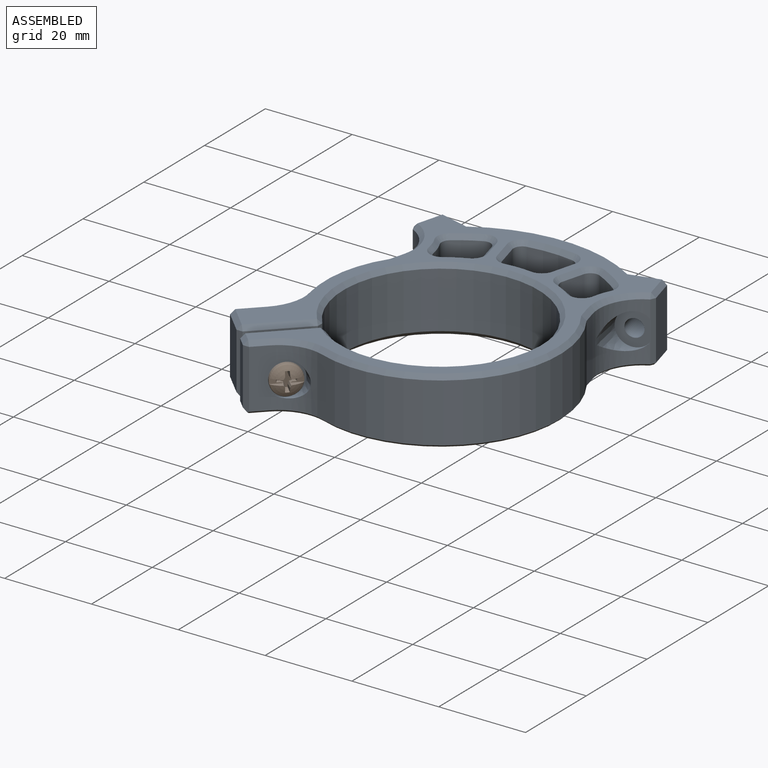
[diagram: assembled view]
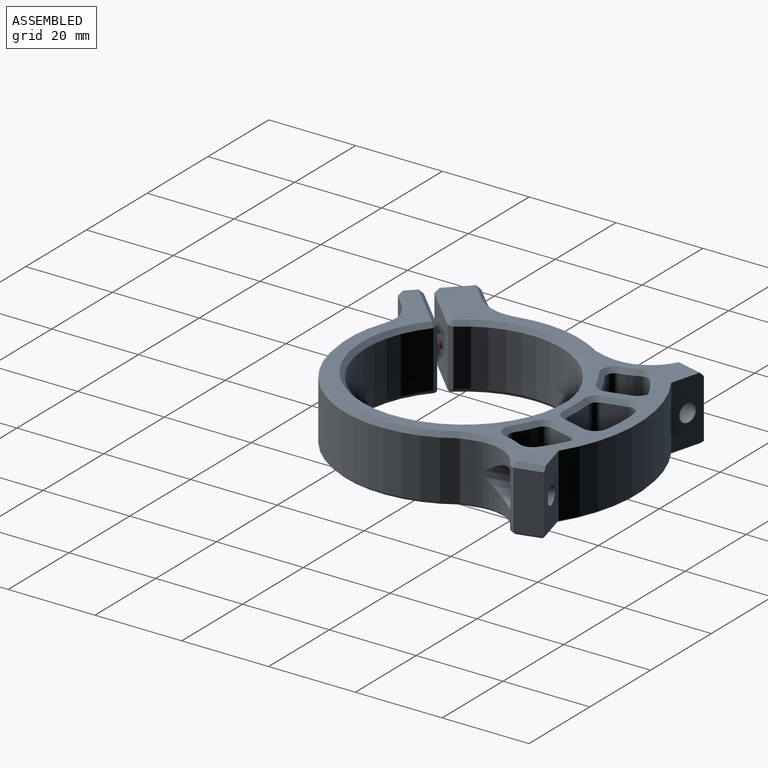
[diagram: assembled view, second angle]
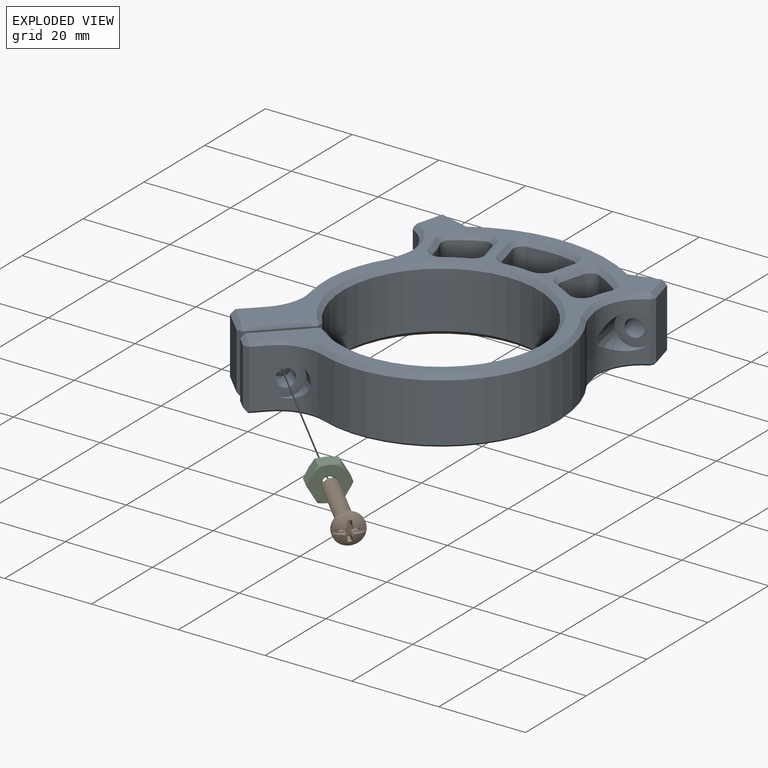
[diagram: exploded view]
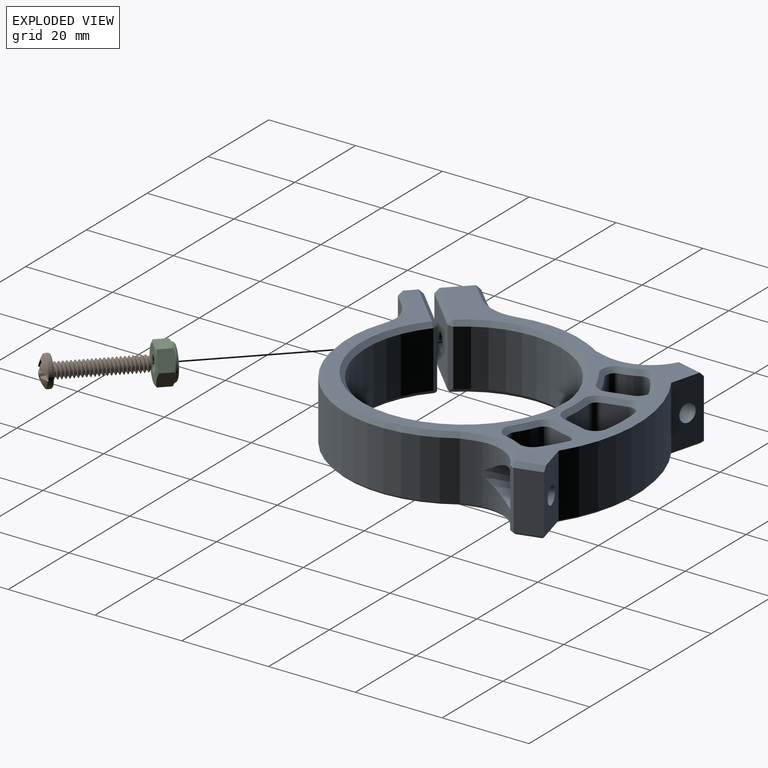
[diagram: exploded view, second angle]
ASSEMBLY  parts=3 mates=2
PART A: 170 faces, bbox 64.1x71.2x15 mm
  f0: cylinder r=2.02mm len=6.4mm, axis (0.71,-0.71,0), area 63.6mm2, adj f25,f90
  f1: cylinder r=10mm len=13.5mm, axis (0,0,1), area 98.2mm2, adj f20,f21,f83,f149,f154
  f2: cylinder r=10mm len=13.5mm, axis (0,0,-1), area 110.7mm2, adj f18,f75,f76,f115,f118,f164
  f3: plane 9.79x5.85mm, normal (0,0,1), area 47mm2, adj f52,f55,f58,f61
  f4: cylinder r=30.85mm len=10.47mm, axis (0,0,1), area 84.1mm2, adj f56,f57,f61,f99
  f5: cylinder r=26.5mm len=8mm, axis (0,0,1), area 51.3mm2, adj f50,f51,f52,f106
  f6: plane 7.72x6.41mm, normal (0,0,1), area 27.7mm2, adj f65,f66,f70,f71
  f7: cylinder r=30.85mm len=8mm, axis (0,0,1), area 50.9mm2, adj f67,f71,f73,f98
  f8: cylinder r=26.5mm len=8mm, axis (0,0,1), area 41.3mm2, adj f62,f64,f65,f91
  f9: plane 70.43x60.02mm, normal (0,0,1), area 898mm2, adj f10,f11,f14,f91,f92,f93,f94,f95
  f10: plane 14.5x7.75mm, normal (0.26,0.97,0), area 102.9mm2, adj f9,f11,f12,f74,f116,f169
  f11: cylinder r=34.85mm len=37.07mm, axis (0,0,1), area 566.7mm2, adj f9,f10,f14,f167
  f12: plane 13.5x5.94mm, normal (-0.97,0.26,0), area 83mm2, adj f10,f115,f116,f168
  f13: plane 70.28x60.81mm, normal (0,0,-1), area 1371.1mm2, adj f124,f131,f142,f151,f152,f153,f154,f155
  f14: plane 14.5x7.75mm, normal (-0.26,0.97,0), area 102.9mm2, adj f9,f11,f15,f78,f135,f165
  f15: plane 13.5x5.94mm, normal (0.97,0.26,0), area 83mm2, adj f14,f135,f136,f163
  f16: plane 13.5x4.32mm, normal (-0.71,0.71,0), area 58.7mm2, adj f27,f84,f85,f86,f89,f122,f123,f156
  f17: cylinder r=27.5mm len=21.19mm, axis (0,0,1), area 298.8mm2, adj f18,f27,f120,f160
  f18: plane 13.5x3.13mm, normal (-0.97,0.26,0), area 43.7mm2, adj f2,f17,f119,f162
  f19: plane 13.5x3.13mm, normal (0.97,0.26,0), area 43.7mm2, adj f20,f28,f144,f157
  f20: cylinder r=27.5mm len=42.61mm, axis (0,0,1), area 927.1mm2, adj f1,f19,f147,f155
  f21: plane 13.5x7.78mm, normal (0.71,-0.71,0), area 87.1mm2, adj f1,f82,f83,f145,f150,f153
  f22: plane 13x2.12mm, normal (-0.71,-0.71,0), area 39mm2, adj f139,f142,f145,f146
  f23: plane 13.5x10.2mm, normal (-0.71,0.71,0), area 181.8mm2, adj f82,f133,f139,f140,f151
  f24: cylinder r=22.5mm len=45mm, axis (0,0,1), area 1788mm2, adj f129,f131,f133,f134
  f25: plane 13.5x10.2mm, normal (0.71,-0.71,0), area 181.8mm2, adj f0,f126,f129,f130,f152
  f26: plane 13x4.95mm, normal (-0.71,-0.71,0), area 91mm2, adj f122,f124,f126,f127
  f27: cylinder r=10mm len=13.5mm, axis (0,0,1), area 94.7mm2, adj f16,f17,f86,f87,f88,f89,f121,f158
  f28: cylinder r=10mm len=13.5mm, axis (0,0,1), area 110.7mm2, adj f19,f80,f81,f136,f141,f159
  f29: cylinder r=30.85mm len=8mm, axis (0,0,1), area 50.9mm2, adj f44,f45,f49,f107
  f30: plane 7.72x6.41mm, normal (0,0,1), area 27.7mm2, adj f40,f43,f46,f49
  f31: cylinder r=26.5mm len=8mm, axis (0,0,1), area 41.3mm2, adj f38,f39,f40,f114
  f32: cylinder r=14mm len=8mm, axis (0,0,-1), area 34.1mm2, adj f62,f66,f67,f94
  f33: cylinder r=14mm len=8mm, axis (0,0,1), area 34.1mm2, adj f39,f45,f46,f111
  f34: plane 8x5.43mm, normal (0.97,0.26,0), area 45mm2, adj f50,f55,f56,f102
  f35: plane 8x5.06mm, normal (-0.97,-0.26,0), area 41.9mm2, adj f64,f70,f73,f95
  f36: plane 8x5.06mm, normal (0.97,-0.26,0), area 41.9mm2, adj f38,f43,f44,f110
  f37: plane 8x5.43mm, normal (-0.97,0.26,0), area 45mm2, adj f51,f57,f58,f103
  f38: cylinder r=2mm len=8mm, axis (0,0,1), area 22.9mm2, adj f31,f36,f41,f112
  f39: cylinder r=2mm len=8mm, axis (0,0,-1), area 31.9mm2, adj f31,f33,f42,f113
  f40: torus R=28.5mm, axis (0,0,-1), area 16.7mm2, adj f30,f31,f41,f42
  f41: sphere r=2mm, area 5.7mm2, adj f38,f40,f43
  f42: sphere r=2mm, area 8mm2, adj f39,f40,f46
  f43: cylinder r=2mm len=5.58mm, axis (0.26,0.97,0), area 16.5mm2, adj f30,f36,f41,f47
  f44: cylinder r=2mm len=8mm, axis (0,0,1), area 28.1mm2, adj f29,f36,f47,f108
  f45: cylinder r=2mm len=8mm, axis (0,0,1), area 22.3mm2, adj f29,f33,f48,f109
  f46: torus R=16mm, axis (0,0,-1), area 14.1mm2, adj f30,f33,f42,f48
  f47: sphere r=2mm, area 7mm2, adj f43,f44,f49
  f48: sphere r=2mm, area 5.6mm2, adj f45,f46,f49
  f49: torus R=28.85mm, axis (0,0,-1), area 19.5mm2, adj f29,f30,f47,f48
  f50: cylinder r=2mm len=8mm, axis (0,0,1), area 22.9mm2, adj f5,f34,f53,f104
  f51: cylinder r=2mm len=8mm, axis (0,0,1), area 22.9mm2, adj f5,f37,f54,f105
  f52: torus R=28.5mm, axis (0,0,-1), area 20.7mm2, adj f3,f5,f53,f54
  f53: sphere r=2mm, area 5.7mm2, adj f50,f52,f55
  f54: sphere r=2mm, area 5.7mm2, adj f51,f52,f58
  f55: cylinder r=2mm len=5.95mm, axis (-0.26,0.97,0), area 17.7mm2, adj f3,f34,f53,f59
  f56: cylinder r=2mm len=8mm, axis (0,0,1), area 26.6mm2, adj f4,f34,f59,f100
  f57: cylinder r=2mm len=8mm, axis (0,0,1), area 26.6mm2, adj f4,f37,f60,f101
  f58: cylinder r=2mm len=5.95mm, axis (-0.26,-0.97,0), area 17.7mm2, adj f3,f37,f54,f60
  f59: sphere r=2mm, area 6.6mm2, adj f55,f56,f61
  f60: sphere r=2mm, area 6.6mm2, adj f57,f58,f61
  f61: torus R=28.85mm, axis (0,0,-1), area 32.3mm2, adj f3,f4,f59,f60
  f62: cylinder r=2mm len=8mm, axis (0,0,-1), area 31.9mm2, adj f8,f32,f63,f92
  f63: sphere r=2mm, area 8mm2, adj f62,f65,f66
  f64: cylinder r=2mm len=8mm, axis (0,0,1), area 22.9mm2, adj f8,f35,f68,f93
  f65: torus R=28.5mm, axis (0,0,-1), area 16.7mm2, adj f6,f8,f63,f68
  f66: torus R=16mm, axis (0,0,-1), area 14.1mm2, adj f6,f32,f63,f69
  f67: cylinder r=2mm len=8mm, axis (0,0,1), area 22.3mm2, adj f7,f32,f69,f96
  f68: sphere r=2mm, area 5.7mm2, adj f64,f65,f70
  f69: sphere r=2mm, area 5.6mm2, adj f66,f67,f71
  f70: cylinder r=2mm len=5.58mm, axis (0.26,-0.97,0), area 16.5mm2, adj f6,f35,f68,f72
  f71: torus R=28.85mm, axis (0,0,-1), area 19.5mm2, adj f6,f7,f69,f72
  f72: sphere r=2mm, area 7mm2, adj f70,f71,f73
  f73: cylinder r=2mm len=8mm, axis (0,0,1), area 28.1mm2, adj f7,f35,f72,f97
  f74: cylinder r=2.02mm len=7.81mm, axis (-0.26,-0.97,0), area 89.1mm2, adj f10,f77
  f75: cone r=4mm half-angle=5deg, axis (-0.26,-0.97,0), area 66.8mm2, adj f2,f76,f77,f115
  f76: plane 0.9x0.02mm, normal (0.26,0.97,0), area 0mm2, adj f2,f75
  f77: plane 8x7.06mm, normal (-0.26,-0.97,0), area 35.3mm2, adj f74,f75,f115
  f78: cylinder r=2.02mm len=7.81mm, axis (0.26,-0.97,0), area 89.1mm2, adj f14,f79
  f79: plane 8x7.06mm, normal (0.26,-0.97,0), area 35.3mm2, adj f78,f80,f136
  f80: cone r=4mm half-angle=5deg, axis (0.26,-0.97,0), area 66.8mm2, adj f28,f79,f81,f136
  f81: plane 0.9x0.02mm, normal (-0.26,0.97,0), area 0mm2, adj f28,f80
  f82: cylinder r=2.02mm len=6.4mm, axis (0.71,-0.71,0), area 63.6mm2, adj f21,f23
  f83: cone r=4mm half-angle=5deg, axis (0.71,-0.71,0), area 26.7mm2, adj f1,f21
  f84: plane 4.65x4.4mm, normal (0.57,0.65,0.5), area 19.2mm2, adj f16,f85,f89,f90
  f85: plane 4.65x4.4mm, normal (0.57,0.65,-0.5), area 19.2mm2, adj f16,f84,f86,f90
  f86: plane 6.66x6.24mm, normal (-0.04,0.04,-1), area 19.9mm2, adj f16,f27,f85,f87,f90
  f87: plane 6.11x4.8mm, normal (-0.65,-0.57,-0.5), area 25.1mm2, adj f27,f86,f88,f90
  f88: plane 6.11x4.8mm, normal (-0.65,-0.57,0.5), area 25.1mm2, adj f27,f87,f89,f90
  f89: plane 6.66x6.24mm, normal (-0.04,0.04,1), area 19.9mm2, adj f16,f27,f84,f88,f90
  f90: plane 8.1x6.61mm, normal (-0.71,0.71,0), area 43.9mm2, adj f0,f84,f85,f86,f87,f88,f89
  f91: cone r=26.5mm half-angle=45deg, axis (0,0,-1), area 7.2mm2, adj f8,f9,f92,f93
  f92: cone r=3mm half-angle=45deg, axis (0,0,1), area 7.1mm2, adj f9,f62,f91,f94
  f93: cone r=3mm half-angle=45deg, axis (0,0,1), area 5.1mm2, adj f9,f64,f91,f95
  f94: cone r=14mm half-angle=45deg, axis (0,0,-1), area 5.8mm2, adj f9,f32,f92,f96
  f95: plane 5.32x2.32mm, normal (-0.68,-0.18,0.71), area 7.4mm2, adj f9,f35,f93,f97
  f96: cone r=3mm half-angle=45deg, axis (0,0,1), area 4.9mm2, adj f9,f67,f94,f98
  f97: cone r=3mm half-angle=45deg, axis (0,0,1), area 6.2mm2, adj f9,f73,f95,f98
  f98: cone r=31.85mm half-angle=45deg, axis (0,0,1), area 9.1mm2, adj f7,f9,f96,f97
  f99: cone r=31.85mm half-angle=45deg, axis (0,0,1), area 15.1mm2, adj f4,f9,f100,f101
  f100: cone r=3mm half-angle=45deg, axis (0,0,1), area 5.9mm2, adj f9,f56,f99,f102
  f101: cone r=3mm half-angle=45deg, axis (0,0,1), area 5.9mm2, adj f9,f57,f99,f103
  f102: plane 5.69x2.42mm, normal (0.68,0.18,0.71), area 7.9mm2, adj f9,f34,f100,f104
  f103: plane 5.69x2.42mm, normal (-0.68,0.18,0.71), area 7.9mm2, adj f9,f37,f101,f105
  f104: cone r=3mm half-angle=45deg, axis (0,0,1), area 5.1mm2, adj f9,f50,f102,f106
  f105: cone r=3mm half-angle=45deg, axis (0,0,1), area 5.1mm2, adj f9,f51,f103,f106
  f106: cone r=26.5mm half-angle=45deg, axis (0,0,-1), area 8.9mm2, adj f5,f9,f104,f105
  f107: cone r=31.85mm half-angle=45deg, axis (0,0,1), area 9.1mm2, adj f9,f29,f108,f109
  f108: cone r=3mm half-angle=45deg, axis (0,0,1), area 6.2mm2, adj f9,f44,f107,f110
  f109: cone r=3mm half-angle=45deg, axis (0,0,1), area 4.9mm2, adj f9,f45,f107,f111
  f110: plane 5.32x2.32mm, normal (0.68,-0.18,0.71), area 7.4mm2, adj f9,f36,f108,f112
  f111: cone r=14mm half-angle=45deg, axis (0,0,-1), area 5.8mm2, adj f9,f33,f109,f113
  f112: cone r=3mm half-angle=45deg, axis (0,0,1), area 5.1mm2, adj f9,f38,f110,f114
  f113: cone r=3mm half-angle=45deg, axis (0,0,1), area 7.1mm2, adj f9,f39,f111,f114
  f114: cone r=26.5mm half-angle=45deg, axis (0,0,-1), area 7.2mm2, adj f9,f31,f112,f113
  f115: plane 13.5x1.16mm, normal (-0.91,-0.41,0), area 16.3mm2, adj f2,f12,f75,f77,f117,f166
  f116: plane 6.2x2.56mm, normal (-0.68,0.18,0.71), area 8.7mm2, adj f9,f10,f12,f117
  f117: plane 1.15x1mm, normal (-0.72,-0.33,0.61), area 0.8mm2, adj f115,f116,f118
  f118: cone r=11mm half-angle=45deg, axis (0,0,1), area 20.4mm2, adj f2,f9,f117,f119
  f119: plane 3.54x1.81mm, normal (-0.68,0.18,0.71), area 4.7mm2, adj f9,f18,f118,f120
  f120: cone r=27.5mm half-angle=45deg, axis (0,0,-1), area 30.8mm2, adj f9,f17,f119,f121
  f121: cone r=11mm half-angle=45deg, axis (0,0,1), area 15mm2, adj f9,f27,f120,f123
  f122: plane 13.75x1.41mm, normal (-1,0,0), area 19mm2, adj f16,f26,f124,f125,f156
  f123: plane 5.03x5.03mm, normal (-0.5,0.5,0.71), area 8.6mm2, adj f9,f16,f121,f125
  f124: plane 6.01x6.01mm, normal (-0.5,-0.5,-0.71), area 11.1mm2, adj f13,f26,f122,f126,f152,f156
  f125: plane 1.41x1mm, normal (-0.82,0,0.58), area 0.9mm2, adj f122,f123,f127
  f126: plane 13.75x1.41mm, normal (0,-1,0), area 19mm2, adj f25,f26,f124,f128,f152
  f127: plane 5.66x5.66mm, normal (-0.5,-0.5,0.71), area 9.9mm2, adj f9,f26,f125,f128
  f128: plane 1.41x1mm, normal (0,-0.82,0.58), area 0.9mm2, adj f126,f127,f130
  f129: plane 13.73x1.37mm, normal (1,-0.04,0), area 18.1mm2, adj f24,f25,f131,f132,f152
  f130: plane 10.91x10.91mm, normal (0.5,-0.5,0.71), area 20.4mm2, adj f9,f25,f128,f132
  f131: cone r=22.5mm half-angle=45deg, axis (0,0,-1), area 200.1mm2, adj f13,f24,f129,f133,f151,f152
  f132: plane 1.35x1mm, normal (0.8,-0.03,0.59), area 0.8mm2, adj f129,f130,f134
  f133: plane 13.73x1.37mm, normal (-0.04,1,0), area 18.1mm2, adj f23,f24,f131,f137,f151
  f134: cone r=23.5mm half-angle=45deg, axis (0,0,1), area 198.8mm2, adj f9,f24,f132,f137
  f135: plane 6.2x2.56mm, normal (0.68,0.18,0.71), area 8.7mm2, adj f9,f14,f15,f138
  f136: plane 13.5x1.16mm, normal (0.91,-0.41,0), area 16.3mm2, adj f15,f28,f79,f80,f138,f161
  f137: plane 1.35x1mm, normal (-0.03,0.8,0.59), area 0.8mm2, adj f133,f134,f140
  f138: plane 1.15x1mm, normal (0.72,-0.33,0.61), area 0.8mm2, adj f135,f136,f141
  f139: plane 13.75x1.41mm, normal (-1,0,0), area 19mm2, adj f22,f23,f142,f143,f151
  f140: plane 10.91x10.91mm, normal (-0.5,0.5,0.71), area 20.4mm2, adj f9,f23,f137,f143
  f141: cone r=11mm half-angle=45deg, axis (0,0,1), area 20.4mm2, adj f9,f28,f138,f144
  f142: plane 3.18x3.18mm, normal (-0.5,-0.5,-0.71), area 5.5mm2, adj f13,f22,f139,f145,f151,f153
  f143: plane 1.41x1mm, normal (-0.82,0,0.58), area 0.9mm2, adj f139,f140,f146
  f144: plane 3.54x1.81mm, normal (0.68,0.18,0.71), area 4.7mm2, adj f9,f19,f141,f147
  f145: plane 13.75x1.41mm, normal (0,-1,0), area 19mm2, adj f21,f22,f142,f148,f153
  f146: plane 2.83x2.83mm, normal (-0.5,-0.5,0.71), area 4.2mm2, adj f9,f22,f143,f148
  f147: cone r=27.5mm half-angle=45deg, axis (0,0,-1), area 95.5mm2, adj f9,f20,f144,f149
  f148: plane 1.41x1mm, normal (0,-0.82,0.58), area 0.9mm2, adj f145,f146,f150
  f149: cone r=11mm half-angle=45deg, axis (0,0,1), area 16.8mm2, adj f1,f9,f147,f150
  f150: plane 3.48x3.48mm, normal (0.5,-0.5,0.71), area 5.5mm2, adj f9,f21,f148,f149
  f151: plane 10.57x10.53mm, normal (-0.5,0.5,-0.71), area 10.4mm2, adj f13,f23,f131,f133,f139,f142
  f152: plane 10.57x10.53mm, normal (0.5,-0.5,-0.71), area 10.4mm2, adj f13,f25,f124,f126,f129,f131
  f153: plane 3.13x3.13mm, normal (0.5,-0.5,-0.71), area 2.9mm2, adj f13,f21,f142,f145,f154
  f154: cone r=10.5mm half-angle=45deg, axis (0,0,-1), area 8.2mm2, adj f1,f13,f153,f155
  f155: cone r=27mm half-angle=45deg, axis (0,0,1), area 48.1mm2, adj f13,f20,f154,f157
  f156: plane 4.68x4.68mm, normal (-0.5,0.5,-0.71), area 4.4mm2, adj f13,f16,f122,f124,f158
  f157: plane 3.33x1.32mm, normal (0.68,0.18,-0.71), area 2.3mm2, adj f13,f19,f155,f159
  f158: cone r=10.5mm half-angle=45deg, axis (0,0,-1), area 7.3mm2, adj f13,f27,f156,f160
  f159: cone r=10.5mm half-angle=45deg, axis (0,0,-1), area 9.9mm2, adj f13,f28,f157,f161
  f160: cone r=27mm half-angle=45deg, axis (0,0,1), area 15.5mm2, adj f13,f17,f158,f162
  f161: plane 1.2x0.91mm, normal (0.64,-0.29,-0.71), area 0.8mm2, adj f13,f136,f159,f163
  f162: plane 3.33x1.32mm, normal (-0.68,0.18,-0.71), area 2.3mm2, adj f13,f18,f160,f164
  f163: plane 5.94x1.94mm, normal (0.68,0.18,-0.71), area 4.1mm2, adj f13,f15,f161,f165
  f164: cone r=10.5mm half-angle=45deg, axis (0,0,-1), area 9.9mm2, adj f2,f13,f162,f166
  f165: plane 7.83x2.62mm, normal (-0.18,0.68,-0.71), area 5.6mm2, adj f13,f14,f163,f167
  f166: plane 1.2x0.91mm, normal (-0.64,-0.29,-0.71), area 0.8mm2, adj f13,f115,f164,f168
  f167: cone r=34.35mm half-angle=45deg, axis (0,0,1), area 27.6mm2, adj f11,f13,f165,f169
  f168: plane 5.94x1.94mm, normal (-0.68,0.18,-0.71), area 4.1mm2, adj f12,f13,f166,f169
  f169: plane 7.83x2.62mm, normal (0.18,0.68,-0.71), area 5.6mm2, adj f10,f13,f167,f168
PART B: 87 faces, bbox 7.7x21.9x7.7 mm
  f0: sphere r=5.39mm, area 12.4mm2, adj f1,f2,f61,f62,f63,f64,f79,f80
  f1: plane 2.02x0.61mm, normal (-0.38,-0.09,-0.92), area 0.6mm2, adj f0,f64,f65,f67,f85,f86
  f2: plane 2.02x0.61mm, normal (0.38,-0.09,-0.92), area 0.6mm2, adj f0,f67,f78,f79,f81,f82
  f3: cylinder r=1.75mm len=3.51mm, axis (0,-1,0), area 0.5mm2, adj f27,f28,f51,f52
  f4: cylinder r=1.75mm len=3.51mm, axis (0,-1,0), area 0.5mm2, adj f28,f29,f51,f52
  f5: cylinder r=1.75mm len=3.51mm, axis (0,-1,0), area 0.5mm2, adj f29,f30,f51,f52
  f6: cylinder r=1.75mm len=3.51mm, axis (0,-1,0), area 0.5mm2, adj f30,f31,f51,f52
  f7: cylinder r=1.75mm len=3.51mm, axis (0,-1,0), area 0.5mm2, adj f31,f32,f51,f52
  f8: cylinder r=1.75mm len=3.51mm, axis (0,-1,0), area 0.5mm2, adj f32,f33,f51,f52
  f9: cylinder r=1.75mm len=3.51mm, axis (0,-1,0), area 0.5mm2, adj f33,f34,f51,f52
  f10: cylinder r=1.75mm len=3.51mm, axis (0,-1,0), area 0.5mm2, adj f34,f35,f51,f52
  f11: cylinder r=1.75mm len=3.51mm, axis (0,-1,0), area 0.5mm2, adj f35,f36,f51,f52
  f12: cylinder r=1.75mm len=3.51mm, axis (0,-1,0), area 0.5mm2, adj f36,f37,f51,f52
  f13: cylinder r=1.75mm len=3.51mm, axis (0,-1,0), area 0.5mm2, adj f37,f38,f51,f52
  f14: cylinder r=1.75mm len=3.51mm, axis (0,-1,0), area 0.5mm2, adj f38,f39,f51,f52
  f15: cylinder r=1.75mm len=3.51mm, axis (0,-1,0), area 0.5mm2, adj f39,f40,f51,f52
  f16: cylinder r=1.75mm len=3.51mm, axis (0,-1,0), area 0.5mm2, adj f40,f41,f51,f52
  f17: cylinder r=1.75mm len=3.51mm, axis (0,-1,0), area 0.5mm2, adj f41,f42,f51,f52
  f18: cylinder r=1.75mm len=3.51mm, axis (0,-1,0), area 0.5mm2, adj f42,f43,f51,f52
  f19: cylinder r=1.75mm len=3.51mm, axis (0,-1,0), area 0.5mm2, adj f43,f44,f51,f52
  f20: cylinder r=1.75mm len=3.51mm, axis (0,-1,0), area 0.5mm2, adj f44,f45,f51,f52
  f21: cylinder r=1.75mm len=3.51mm, axis (0,-1,0), area 0.5mm2, adj f45,f46,f51,f52
  f22: cylinder r=1.75mm len=3.51mm, axis (0,-1,0), area 0.5mm2, adj f46,f47,f51,f52
  f23: cylinder r=1.75mm len=3.51mm, axis (0,-1,0), area 0.5mm2, adj f47,f48,f51,f52
  f24: cylinder r=1.75mm len=3.51mm, axis (0,-1,0), area 0.5mm2, adj f48,f49,f51,f52
  f25: cylinder r=1.75mm len=3.51mm, axis (0,-1,0), area 0.5mm2, adj f49,f51,f52,f53
  f26: cylinder r=1.75mm len=0.68mm, axis (0,-1,0), area 0mm2, adj f27,f50,f52
  f27: cylinder r=1.75mm len=3.51mm, axis (0,-1,0), area 0.5mm2, adj f3,f26,f50,f51,f52
  f28: cylinder r=1.75mm len=3.51mm, axis (0,-1,0), area 0.5mm2, adj f3,f4,f51,f52
  f29: cylinder r=1.75mm len=3.51mm, axis (0,-1,0), area 0.5mm2, adj f4,f5,f51,f52
  f30: cylinder r=1.75mm len=3.51mm, axis (0,-1,0), area 0.5mm2, adj f5,f6,f51,f52
  f31: cylinder r=1.75mm len=3.51mm, axis (0,-1,0), area 0.5mm2, adj f6,f7,f51,f52
  f32: cylinder r=1.75mm len=3.51mm, axis (0,-1,0), area 0.5mm2, adj f7,f8,f51,f52
  f33: cylinder r=1.75mm len=3.51mm, axis (0,-1,0), area 0.5mm2, adj f8,f9,f51,f52
  f34: cylinder r=1.75mm len=3.51mm, axis (0,-1,0), area 0.5mm2, adj f9,f10,f51,f52
  f35: cylinder r=1.75mm len=3.51mm, axis (0,-1,0), area 0.5mm2, adj f10,f11,f51,f52
  f36: cylinder r=1.75mm len=3.51mm, axis (0,-1,0), area 0.5mm2, adj f11,f12,f51,f52
  f37: cylinder r=1.75mm len=3.51mm, axis (0,-1,0), area 0.5mm2, adj f12,f13,f51,f52
  f38: cylinder r=1.75mm len=3.51mm, axis (0,-1,0), area 0.5mm2, adj f13,f14,f51,f52
  f39: cylinder r=1.75mm len=3.51mm, axis (0,-1,0), area 0.5mm2, adj f14,f15,f51,f52
  f40: cylinder r=1.75mm len=3.51mm, axis (0,-1,0), area 0.5mm2, adj f15,f16,f51,f52
  f41: cylinder r=1.75mm len=3.51mm, axis (0,-1,0), area 0.5mm2, adj f16,f17,f51,f52
  f42: cylinder r=1.75mm len=3.51mm, axis (0,-1,0), area 0.5mm2, adj f17,f18,f51,f52
  f43: cylinder r=1.75mm len=3.51mm, axis (0,-1,0), area 0.5mm2, adj f18,f19,f51,f52
  f44: cylinder r=1.75mm len=3.51mm, axis (0,-1,0), area 0.5mm2, adj f19,f20,f51,f52
  f45: cylinder r=1.75mm len=3.51mm, axis (0,-1,0), area 0.5mm2, adj f20,f21,f51,f52
  f46: cylinder r=1.75mm len=3.51mm, axis (0,-1,0), area 0.5mm2, adj f21,f22,f51,f52
  f47: cylinder r=1.75mm len=3.51mm, axis (0,-1,0), area 0.5mm2, adj f22,f23,f51,f52
  f48: cylinder r=1.75mm len=3.51mm, axis (0,-1,0), area 0.5mm2, adj f23,f24,f51,f52
  f49: cylinder r=1.75mm len=3.51mm, axis (0,-1,0), area 0.5mm2, adj f24,f25,f51,f52
  f50: plane 6.27x6.27mm, normal (0,1,0), area 20.9mm2, adj f26,f27,f51,f52,f56,f58
  f51: bspline ~19.35x4.05mm, area 131.8mm2, adj f3,f4,f5,f6,f7,f8,f9,f10
  f52: bspline ~19.48x4.05mm, area 132.6mm2, adj f3,f4,f5,f6,f7,f8,f9,f10
  f53: cylinder r=1.75mm len=3.25mm, axis (0,-1,0), area 0.4mm2, adj f25,f51,f52,f57
  f54: bspline ~2.8x1.46mm, area 0.5mm2, adj f51,f56,f57
  f55: plane 2.47x2.47mm, normal (0,1,0), area 4.8mm2, adj f56,f57
  f56: cylinder r=1.24mm len=19.05mm, axis (0,-1,0), area 22.6mm2, adj f50,f51,f52,f54,f55
  f57: cone r=4.41mm half-angle=45deg, axis (0,-1,0), area 3.3mm2, adj f51,f52,f53,f54,f55
  f58: torus R=2.99mm, axis (0,-1,0), area 14.3mm2, adj f50,f59
  f59: cylinder r=3.43mm len=6.86mm, axis (0,1,0), area 12.4mm2, adj f58,f61
  f60: sphere r=5.39mm, area 12.4mm2, adj f61,f69,f70,f71,f72,f73,f74,f75
  f61: torus R=2.99mm, axis (0,-1,0), area 7.9mm2, adj f0,f59,f60,f81,f82,f83,f84,f85
  f62: cone r=2.38mm half-angle=15deg, axis (0,-1,0), area 1.3mm2, adj f0,f63,f67,f80
  f63: plane 2.03x1.14mm, normal (-1,-0.09,0), area 1.5mm2, adj f0,f62,f64,f67
  f64: plane 2.07x0.69mm, normal (-0.92,-0.09,-0.38), area 1.2mm2, adj f0,f1,f63,f67
  f65: plane 0.83x0.75mm, normal (0,-0.09,-1), area 0.5mm2, adj f1,f66,f67,f86
  f66: cone r=2.38mm half-angle=15deg, axis (0,-1,0), area 0.6mm2, adj f65,f67,f68,f86
  f67: plane 3.64x3.64mm, normal (0,-1,0), area 5.1mm2, adj f1,f2,f62,f63,f64,f65,f66,f68
  f68: plane 0.83x0.75mm, normal (0,-0.09,1), area 0.5mm2, adj f66,f67,f69,f86
  f69: plane 2.02x0.61mm, normal (-0.38,-0.09,0.92), area 0.6mm2, adj f60,f67,f68,f70,f84,f86
  f70: plane 2.07x0.69mm, normal (-0.92,-0.09,0.38), area 1.2mm2, adj f60,f67,f69,f71
  f71: plane 2.03x1.14mm, normal (-1,-0.09,0), area 1.5mm2, adj f60,f67,f70,f72
  f72: cone r=2.38mm half-angle=15deg, axis (0,-1,0), area 1.3mm2, adj f60,f67,f71,f73
  f73: plane 2.03x1.14mm, normal (1,-0.09,0), area 1.5mm2, adj f60,f67,f72,f74
  f74: plane 2.07x0.69mm, normal (0.92,-0.09,0.38), area 1.2mm2, adj f60,f67,f73,f75
  f75: plane 2.02x0.61mm, normal (0.38,-0.09,0.92), area 0.6mm2, adj f60,f67,f74,f76,f81,f83
  f76: plane 0.83x0.75mm, normal (0,-0.09,1), area 0.5mm2, adj f67,f75,f77,f81
  f77: cone r=2.38mm half-angle=15deg, axis (0,-1,0), area 0.6mm2, adj f67,f76,f78,f81
  f78: plane 0.83x0.75mm, normal (0,-0.09,-1), area 0.5mm2, adj f2,f67,f77,f81
  f79: plane 2.07x0.69mm, normal (0.92,-0.09,-0.38), area 1.2mm2, adj f0,f2,f67,f80
  f80: plane 2.03x1.14mm, normal (1,-0.09,0), area 1.5mm2, adj f0,f62,f67,f79
  f81: plane 2.78x1.22mm, normal (0,-1,0), area 2.2mm2, adj f2,f61,f75,f76,f77,f78,f82,f83
  f82: plane 2.73x1.24mm, normal (0,0,-1), area 2.1mm2, adj f0,f2,f61,f81
  f83: plane 2.73x1.24mm, normal (0,0,1), area 2.1mm2, adj f60,f61,f75,f81
  f84: plane 2.73x1.24mm, normal (0,0,1), area 2.1mm2, adj f60,f61,f69,f86
  f85: plane 2.73x1.24mm, normal (0,0,-1), area 2.1mm2, adj f0,f1,f61,f86
  f86: plane 2.78x1.22mm, normal (0,-1,0), area 2.2mm2, adj f1,f61,f65,f66,f68,f69,f84,f85
PART C: 54 faces, bbox 9.5x9.5x4.8 mm
  f0: cylinder r=3.73mm len=7.47mm, axis (0,0,-1), area 1.8mm2, adj f3,f50
  f1: plane 3.55x3.28mm, normal (0,0,-1), area 2.3mm2, adj f2,f17,f18,f19,f20,f21,f22
  f2: cylinder r=1.41mm len=2.82mm, axis (0,0,-1), area 6.4mm2, adj f1,f4
  f3: torus R=3.24mm, axis (0,0,-1), area 15.7mm2, adj f0,f4
  f4: plane 6.48x6.48mm, normal (0,0,1), area 26.8mm2, adj f2,f3
  f5: plane 6.48x6.48mm, normal (0,0,1), area 16mm2, adj f43,f53
  f6: cone r=1.75mm half-angle=65deg, axis (0,0,-1), area 1.4mm2, adj f7,f9,f10,f11
  f7: plane 7.94x7.94mm, normal (0,0,-1), area 39.8mm2, adj f6,f8,f13,f31,f32,f33,f34,f35
  f8: cone r=1.75mm half-angle=65deg, axis (0,0,-1), area 0.6mm2, adj f7,f12
  f9: cone r=1.9mm half-angle=60deg, axis (0,-0.22,0.98), area 3.7mm2, adj f6,f10,f14
  f10: cylinder r=1.47mm len=2.94mm, axis (0,-0.22,0.98), area 1.3mm2, adj f6,f9,f11
  f11: cone r=1.47mm half-angle=60deg, axis (0,0.22,-0.98), area 2mm2, adj f6,f10,f13
  f12: cone r=1.9mm half-angle=60deg, axis (0,-0.22,0.98), area 0mm2, adj f8,f13
  f13: cylinder r=1.75mm len=3.51mm, axis (0,0,-1), area 1.1mm2, adj f7,f11,f12
  f14: cylinder r=1.75mm len=3.51mm, axis (0,0,-1), area 2.3mm2, adj f9,f30
  f15: cylinder r=1.75mm len=3.51mm, axis (0,0,-1), area 2.4mm2, adj f27,f28
  f16: cylinder r=1.75mm len=3.51mm, axis (0,0,-1), area 2.4mm2, adj f24,f25
  f17: cylinder r=1.75mm len=3.51mm, axis (0,0,-1), area 1.9mm2, adj f1,f21,f22
  f18: cylinder r=1.75mm len=1.53mm, axis (0,0,-1), area 0mm2, adj f1,f19
  f19: cone r=1.9mm half-angle=60deg, axis (0,-0.22,0.98), area 0.7mm2, adj f1,f18,f20
  f20: cylinder r=1.47mm len=2.94mm, axis (0,-0.22,0.98), area 0.7mm2, adj f1,f19,f21
  f21: cone r=1.47mm half-angle=60deg, axis (0,0.22,-0.98), area 1.8mm2, adj f1,f17,f20
  f22: cone r=1.9mm half-angle=60deg, axis (0,-0.22,0.98), area 4.7mm2, adj f1,f17,f23
  f23: cylinder r=1.47mm len=2.94mm, axis (0,-0.22,0.98), area 1.8mm2, adj f22,f24
  f24: cone r=1.47mm half-angle=60deg, axis (0,0.22,-0.98), area 3.7mm2, adj f16,f23
  f25: cone r=1.9mm half-angle=60deg, axis (0,-0.22,0.98), area 4.2mm2, adj f16,f26
  f26: cylinder r=1.47mm len=2.94mm, axis (0,-0.22,0.98), area 1.8mm2, adj f25,f27
  f27: cone r=1.47mm half-angle=60deg, axis (0,0.22,-0.98), area 3.7mm2, adj f15,f26
  f28: cone r=1.9mm half-angle=60deg, axis (0,-0.22,0.98), area 4.2mm2, adj f15,f29
  f29: cylinder r=1.47mm len=2.94mm, axis (0,-0.22,0.98), area 1.8mm2, adj f28,f30
  f30: cone r=1.47mm half-angle=60deg, axis (0,0.22,-0.98), area 3.7mm2, adj f14,f29
  f31: cone r=4.58mm half-angle=65deg, axis (0,0,1), area 1.5mm2, adj f7,f45,f46
  f32: cone r=4.58mm half-angle=65deg, axis (0,0,1), area 1.5mm2, adj f7,f44,f45
  f33: cone r=4.58mm half-angle=65deg, axis (0,0,1), area 1.5mm2, adj f7,f44,f49
  f34: cone r=4.58mm half-angle=65deg, axis (0,0,1), area 1.5mm2, adj f7,f48,f49
  f35: cone r=4.58mm half-angle=65deg, axis (0,0,1), area 1.5mm2, adj f7,f47,f48
  f36: cone r=4.58mm half-angle=65deg, axis (0,0,1), area 1.5mm2, adj f7,f46,f47
  f37: cone r=3.97mm half-angle=65deg, axis (0,0,-1), area 1.5mm2, adj f43,f46,f47
  f38: cone r=3.97mm half-angle=65deg, axis (0,0,-1), area 1.5mm2, adj f43,f47,f48
  f39: cone r=3.97mm half-angle=65deg, axis (0,0,-1), area 1.5mm2, adj f43,f48,f49
  f40: cone r=3.97mm half-angle=65deg, axis (0,0,-1), area 1.5mm2, adj f43,f45,f46
  f41: cone r=3.97mm half-angle=65deg, axis (0,0,-1), area 1.5mm2, adj f43,f44,f49
  f42: cone r=3.97mm half-angle=65deg, axis (0,0,-1), area 1.5mm2, adj f43,f44,f45
  f43: torus R=3.24mm, axis (0,0,-1), area 26.6mm2, adj f5,f37,f38,f39,f40,f41,f42
  f44: plane 4.95x4mm, normal (1,0,0), area 15.8mm2, adj f32,f33,f41,f42,f45,f49
  f45: plane 4.33x4mm, normal (0.5,-0.87,0), area 15.8mm2, adj f31,f32,f40,f42,f44,f46
  f46: plane 4.33x4mm, normal (-0.5,-0.87,0), area 15.8mm2, adj f31,f36,f37,f40,f45,f47
  f47: plane 4.95x4mm, normal (-1,0,0), area 15.8mm2, adj f35,f36,f37,f38,f46,f48
  f48: plane 4.33x4mm, normal (-0.5,0.87,0), area 15.8mm2, adj f34,f35,f38,f39,f47,f49
  f49: plane 4.33x4mm, normal (0.5,0.87,0), area 15.8mm2, adj f33,f34,f39,f41,f44,f48
  f50: plane 7.63x7.63mm, normal (0,0,1), area 1.9mm2, adj f0,f51
  f51: torus R=3.24mm, axis (0,0,-1), area 20.5mm2, adj f50,f52
  f52: plane 6.48x6.48mm, normal (0,0,-1), area 16mm2, adj f51,f53
  f53: cylinder r=2.33mm len=4.65mm, axis (0,0,-1), area 2.2mm2, adj f5,f52
PLACE A at identity
PLACE B rot(axis=(0,0,1),45deg) t=(-31.03,22.42,-0.41)mm
PLACE C rot(axis=(-0.68,0.28,0.68),148.6deg) t=(-26.05,17.44,-0.5)mm
MATE slider C.f6 <-> A.f83  axis (0.71,-0.71,0) through (-26.05,17.44,-0.5)mm
MATE slider B.f50 <-> A.f83  axis (-0.71,0.71,0) through (-17.56,8.95,-0.5)mm
